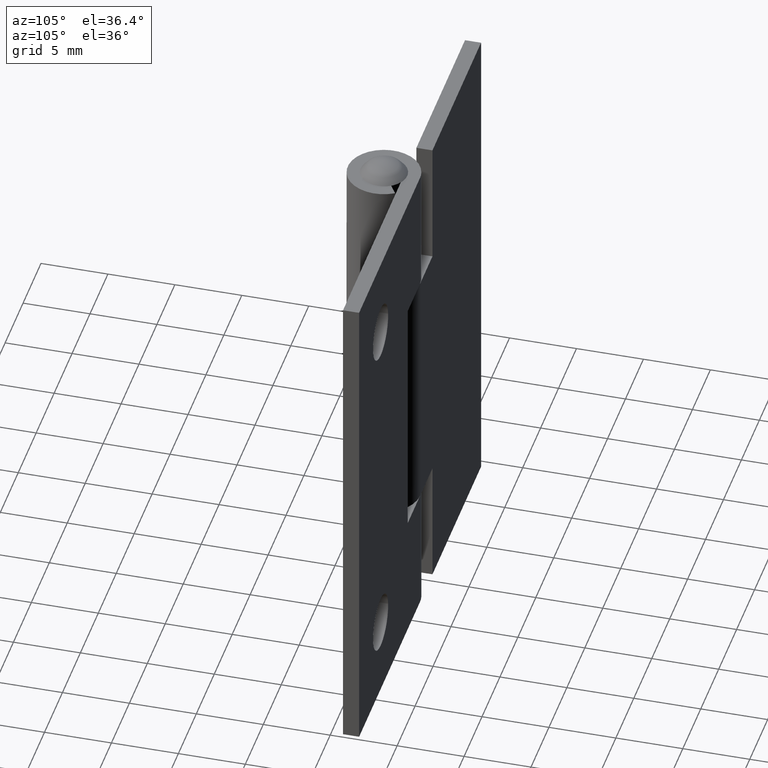
[diagram: clean part render]
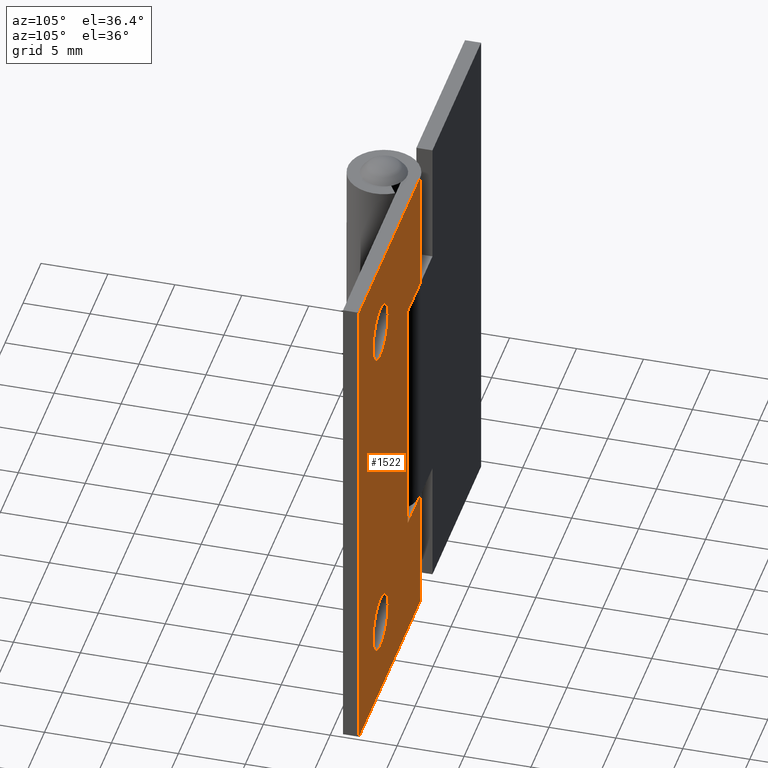
[diagram: same view with one face highlighted and labeled with its STEP entity id]
A machine part, auxiliary view. The second image highlights one B-rep face of the part: STEP entity #1522.
In plain terms, the highlighted face is a freeform B-spline surface patch.
Its self-contained STEP definition (entity closure, byte-faithful):
#503=CARTESIAN_POINT('',(8.906473599163061,2.700000000000035,32.164764101061877));
#504=VERTEX_POINT('',#503);
#510=CARTESIAN_POINT('',(11.0,2.700000000000035,34.100000000000001));
#511=VERTEX_POINT('',#510);
#512=CARTESIAN_POINT('',(11.0,2.700000000000035,34.100000000000001));
#513=CARTESIAN_POINT('',(9.058779967548833,2.700000000000035,34.100000000000009));
#514=CARTESIAN_POINT('',(8.906473599163062,2.700000000000035,32.164764101061877));
#522=(BOUNDED_CURVE()B_SPLINE_CURVE(2,(#512,#513,#514),.UNSPECIFIED.,.F.,.U.)B_SPLINE_CURVE_WITH_KNOTS((3,3),(0.0,0.236331300630032),.UNSPECIFIED.)CURVE()GEOMETRIC_REPRESENTATION_ITEM()RATIONAL_B_SPLINE_CURVE((1.0,0.723120658608401,0.969723356166107))REPRESENTATION_ITEM(''));
#523=EDGE_CURVE('',#511,#504,#522,.T.);
#525=CARTESIAN_POINT('',(13.093526400836939,2.700000000000035,31.835235898938119));
#526=VERTEX_POINT('',#525);
#527=CARTESIAN_POINT('',(13.093526400836945,2.700000000000035,31.835235898938127));
#528=CARTESIAN_POINT('',(13.100000000000001,2.700000000000035,31.917490775267115));
#529=CARTESIAN_POINT('',(13.100000000000000,2.700000000000035,32.0));
#530=CARTESIAN_POINT('',(13.100000000000001,2.700000000000035,34.099999999999994));
#531=CARTESIAN_POINT('',(11.0,2.700000000000035,34.100000000000001));
#539=(BOUNDED_CURVE()B_SPLINE_CURVE(2,(#527,#528,#529,#530,#531),.UNSPECIFIED.,.F.,.U.)B_SPLINE_CURVE_WITH_KNOTS((3,2,3),(0.736331300630032,0.750000000000000,1.0),.UNSPECIFIED.)CURVE()GEOMETRIC_REPRESENTATION_ITEM()RATIONAL_B_SPLINE_CURVE((0.969723356166108,0.983986122578147,1.0,0.707106781186548,1.0))REPRESENTATION_ITEM(''));
#540=EDGE_CURVE('',#526,#511,#539,.T.);
#616=CARTESIAN_POINT('',(11.0,2.700000000000035,29.899999999999999));
#617=VERTEX_POINT('',#616);
#618=CARTESIAN_POINT('',(11.0,2.700000000000035,29.899999999999999));
#619=CARTESIAN_POINT('',(12.941220032451167,2.700000000000035,29.900000000000009));
#620=CARTESIAN_POINT('',(13.093526400836945,2.700000000000035,31.835235898938127));
#628=(BOUNDED_CURVE()B_SPLINE_CURVE(2,(#618,#619,#620),.UNSPECIFIED.,.F.,.U.)B_SPLINE_CURVE_WITH_KNOTS((3,3),(0.500000000000000,0.736331300630032),.UNSPECIFIED.)CURVE()GEOMETRIC_REPRESENTATION_ITEM()RATIONAL_B_SPLINE_CURVE((1.0,0.723120658608401,0.969723356166108))REPRESENTATION_ITEM(''));
#629=EDGE_CURVE('',#617,#526,#628,.T.);
#631=CARTESIAN_POINT('',(8.906473599163059,2.700000000000036,32.164764101061891));
#632=CARTESIAN_POINT('',(8.899999999999999,2.700000000000036,32.082509224732888));
#633=CARTESIAN_POINT('',(8.900000000000000,2.700000000000035,32.0));
#634=CARTESIAN_POINT('',(8.900000000000000,2.700000000000035,29.900000000000009));
#635=CARTESIAN_POINT('',(11.0,2.700000000000035,29.899999999999999));
#643=(BOUNDED_CURVE()B_SPLINE_CURVE(2,(#631,#632,#633,#634,#635),.UNSPECIFIED.,.F.,.U.)B_SPLINE_CURVE_WITH_KNOTS((3,2,3),(0.236331300630031,0.250000000000000,0.500000000000000),.UNSPECIFIED.)CURVE()GEOMETRIC_REPRESENTATION_ITEM()RATIONAL_B_SPLINE_CURVE((0.969723356166106,0.983986122578146,1.0,0.707106781186548,1.0))REPRESENTATION_ITEM(''));
#644=EDGE_CURVE('',#504,#617,#643,.T.);
#685=CARTESIAN_POINT('',(8.906473599163061,2.700000000000035,6.164764101061879));
#686=VERTEX_POINT('',#685);
#692=CARTESIAN_POINT('',(11.0,2.700000000000035,8.100000000000000));
#693=VERTEX_POINT('',#692);
#694=CARTESIAN_POINT('',(11.0,2.700000000000035,8.100000000000000));
#695=CARTESIAN_POINT('',(9.058779967548837,2.700000000000035,8.100000000000000));
#696=CARTESIAN_POINT('',(8.906473599163061,2.700000000000035,6.164764101061878));
#704=(BOUNDED_CURVE()B_SPLINE_CURVE(2,(#694,#695,#696),.UNSPECIFIED.,.F.,.U.)B_SPLINE_CURVE_WITH_KNOTS((3,3),(0.0,0.236331300630032),.UNSPECIFIED.)CURVE()GEOMETRIC_REPRESENTATION_ITEM()RATIONAL_B_SPLINE_CURVE((1.0,0.723120658608401,0.969723356166107))REPRESENTATION_ITEM(''));
#705=EDGE_CURVE('',#693,#686,#704,.T.);
#707=CARTESIAN_POINT('',(13.093526400836939,2.700000000000035,5.835235898938121));
#708=VERTEX_POINT('',#707);
#709=CARTESIAN_POINT('',(13.093526400836941,2.700000000000035,5.835235898938121));
#710=CARTESIAN_POINT('',(13.100000000000005,2.700000000000035,5.917490775267114));
#711=CARTESIAN_POINT('',(13.100000000000000,2.700000000000035,6.0));
#712=CARTESIAN_POINT('',(13.100000000000001,2.700000000000035,8.100000000000000));
#713=CARTESIAN_POINT('',(11.0,2.700000000000035,8.100000000000000));
#721=(BOUNDED_CURVE()B_SPLINE_CURVE(2,(#709,#710,#711,#712,#713),.UNSPECIFIED.,.F.,.U.)B_SPLINE_CURVE_WITH_KNOTS((3,2,3),(0.736331300630032,0.750000000000000,1.0),.UNSPECIFIED.)CURVE()GEOMETRIC_REPRESENTATION_ITEM()RATIONAL_B_SPLINE_CURVE((0.969723356166107,0.983986122578146,1.0,0.707106781186548,1.0))REPRESENTATION_ITEM(''));
#722=EDGE_CURVE('',#708,#693,#721,.T.);
#798=CARTESIAN_POINT('',(11.0,2.700000000000035,3.900000000000000));
#799=VERTEX_POINT('',#798);
#800=CARTESIAN_POINT('',(11.0,2.700000000000035,3.900000000000000));
#801=CARTESIAN_POINT('',(12.941220032451163,2.700000000000035,3.900000000000000));
#802=CARTESIAN_POINT('',(13.093526400836941,2.700000000000035,5.835235898938121));
#810=(BOUNDED_CURVE()B_SPLINE_CURVE(2,(#800,#801,#802),.UNSPECIFIED.,.F.,.U.)B_SPLINE_CURVE_WITH_KNOTS((3,3),(0.500000000000000,0.736331300630032),.UNSPECIFIED.)CURVE()GEOMETRIC_REPRESENTATION_ITEM()RATIONAL_B_SPLINE_CURVE((1.0,0.723120658608401,0.969723356166107))REPRESENTATION_ITEM(''));
#811=EDGE_CURVE('',#799,#708,#810,.T.);
#813=CARTESIAN_POINT('',(8.906473599163059,2.700000000000036,6.164764101061879));
#814=CARTESIAN_POINT('',(8.900000000000000,2.700000000000035,6.082509224732887));
#815=CARTESIAN_POINT('',(8.900000000000000,2.700000000000035,6.0));
#816=CARTESIAN_POINT('',(8.900000000000000,2.700000000000035,3.900000000000001));
#817=CARTESIAN_POINT('',(11.0,2.700000000000035,3.900000000000000));
#825=(BOUNDED_CURVE()B_SPLINE_CURVE(2,(#813,#814,#815,#816,#817),.UNSPECIFIED.,.F.,.U.)B_SPLINE_CURVE_WITH_KNOTS((3,2,3),(0.236331300630032,0.250000000000000,0.500000000000000),.UNSPECIFIED.)CURVE()GEOMETRIC_REPRESENTATION_ITEM()RATIONAL_B_SPLINE_CURVE((0.969723356166107,0.983986122578146,1.0,0.707106781186548,1.0))REPRESENTATION_ITEM(''));
#826=EDGE_CURVE('',#686,#799,#825,.T.);
#1105=CARTESIAN_POINT('',(0.0,2.700000000000000,9.500000000000000));
#1106=VERTEX_POINT('',#1105);
#1150=CARTESIAN_POINT('',(3.450000000000000,2.700000000000035,9.500000000000000));
#1151=VERTEX_POINT('',#1150);
#1157=CARTESIAN_POINT('',(0.0,2.700000000000000,9.500000000000000));
#1158=CARTESIAN_POINT('',(3.450000000000000,2.700000000000035,9.500000000000000));
#1159=QUASI_UNIFORM_CURVE('',1,(#1157,#1158),.UNSPECIFIED.,.F.,.U.);
#1160=EDGE_CURVE('',#1106,#1151,#1159,.T.);
#1170=CARTESIAN_POINT('',(3.450000000000000,2.700000000000035,28.500000000000000));
#1171=VERTEX_POINT('',#1170);
#1186=CARTESIAN_POINT('',(0.0,2.700000000000000,28.500000000000000));
#1187=VERTEX_POINT('',#1186);
#1223=CARTESIAN_POINT('',(3.450000000000000,2.700000000000035,28.500000000000000));
#1224=CARTESIAN_POINT('',(0.0,2.700000000000000,28.500000000000000));
#1225=QUASI_UNIFORM_CURVE('',1,(#1223,#1224),.UNSPECIFIED.,.F.,.U.);
#1226=EDGE_CURVE('',#1171,#1187,#1225,.T.);
#1239=CARTESIAN_POINT('',(3.450000000000000,2.700000000000035,9.500000000000000));
#1240=CARTESIAN_POINT('',(3.450000000000000,2.700000000000035,28.500000000000000));
#1241=QUASI_UNIFORM_CURVE('',1,(#1239,#1240),.UNSPECIFIED.,.F.,.U.);
#1242=EDGE_CURVE('',#1151,#1171,#1241,.T.);
#1254=CARTESIAN_POINT('',(0.0,2.700000000000000,0.0));
#1255=VERTEX_POINT('',#1254);
#1292=CARTESIAN_POINT('',(17.0,2.700000000000000,0.0));
#1293=VERTEX_POINT('',#1292);
#1294=CARTESIAN_POINT('',(0.0,2.700000000000000,0.0));
#1295=CARTESIAN_POINT('',(17.0,2.700000000000000,0.0));
#1296=QUASI_UNIFORM_CURVE('',1,(#1294,#1295),.UNSPECIFIED.,.F.,.U.);
#1297=EDGE_CURVE('',#1255,#1293,#1296,.T.);
#1321=CARTESIAN_POINT('',(0.0,2.700000000000000,38.0));
#1322=VERTEX_POINT('',#1321);
#1366=CARTESIAN_POINT('',(17.0,2.700000000000000,38.0));
#1367=VERTEX_POINT('',#1366);
#1373=CARTESIAN_POINT('',(0.0,2.700000000000000,38.0));
#1374=CARTESIAN_POINT('',(17.0,2.700000000000000,38.0));
#1375=QUASI_UNIFORM_CURVE('',1,(#1373,#1374),.UNSPECIFIED.,.F.,.U.);
#1376=EDGE_CURVE('',#1322,#1367,#1375,.T.);
#1387=CARTESIAN_POINT('',(17.0,2.700000000000000,38.0));
#1388=CARTESIAN_POINT('',(17.0,2.700000000000000,0.0));
#1389=QUASI_UNIFORM_CURVE('',1,(#1387,#1388),.UNSPECIFIED.,.F.,.U.);
#1390=EDGE_CURVE('',#1367,#1293,#1389,.T.);
#1453=CARTESIAN_POINT('',(0.0,2.700000000000000,9.500000000000000));
#1454=CARTESIAN_POINT('',(0.0,2.700000000000000,0.0));
#1455=QUASI_UNIFORM_CURVE('',1,(#1453,#1454),.UNSPECIFIED.,.F.,.U.);
#1456=EDGE_CURVE('',#1106,#1255,#1455,.T.);
#1484=CARTESIAN_POINT('',(0.0,2.700000000000000,38.0));
#1485=CARTESIAN_POINT('',(0.0,2.700000000000000,28.500000000000000));
#1486=QUASI_UNIFORM_CURVE('',1,(#1484,#1485),.UNSPECIFIED.,.F.,.U.);
#1487=EDGE_CURVE('',#1322,#1187,#1486,.T.);
#1495=CARTESIAN_POINT('',(-0.849149967050701,2.700000000000000,-1.898099926348628));
#1496=CARTESIAN_POINT('',(-0.849149967050701,2.700000000000000,39.898100945588048));
#1497=CARTESIAN_POINT('',(17.849150423026231,2.700000000000000,-1.898099926348628));
#1498=CARTESIAN_POINT('',(17.849150423026231,2.700000000000000,39.898100945588048));
#1499=B_SPLINE_SURFACE_WITH_KNOTS('',1,1,((#1495,#1497),(#1496,#1498)),.UNSPECIFIED.,.F.,.F.,.U.,(2,2),(2,2),(0.0,41.796200871936684),(0.0,18.698300390076930),.UNSPECIFIED.);
#1500=ORIENTED_EDGE('',*,*,#1242,.T.);
#1501=ORIENTED_EDGE('',*,*,#1226,.T.);
#1502=ORIENTED_EDGE('',*,*,#1487,.F.);
#1503=ORIENTED_EDGE('',*,*,#1376,.T.);
#1504=ORIENTED_EDGE('',*,*,#1390,.T.);
#1505=ORIENTED_EDGE('',*,*,#1297,.F.);
#1506=ORIENTED_EDGE('',*,*,#1456,.F.);
#1507=ORIENTED_EDGE('',*,*,#1160,.T.);
#1508=EDGE_LOOP('',(#1500,#1501,#1502,#1503,#1504,#1505,#1506,#1507));
#1509=FACE_OUTER_BOUND('',#1508,.T.);
#1510=ORIENTED_EDGE('',*,*,#811,.T.);
#1511=ORIENTED_EDGE('',*,*,#722,.T.);
#1512=ORIENTED_EDGE('',*,*,#705,.T.);
#1513=ORIENTED_EDGE('',*,*,#826,.T.);
#1514=EDGE_LOOP('',(#1510,#1511,#1512,#1513));
#1515=FACE_BOUND('',#1514,.T.);
#1516=ORIENTED_EDGE('',*,*,#629,.T.);
#1517=ORIENTED_EDGE('',*,*,#540,.T.);
#1518=ORIENTED_EDGE('',*,*,#523,.T.);
#1519=ORIENTED_EDGE('',*,*,#644,.T.);
#1520=EDGE_LOOP('',(#1516,#1517,#1518,#1519));
#1521=FACE_BOUND('',#1520,.T.);
#1522=ADVANCED_FACE('',(#1509,#1515,#1521),#1499,.T.);